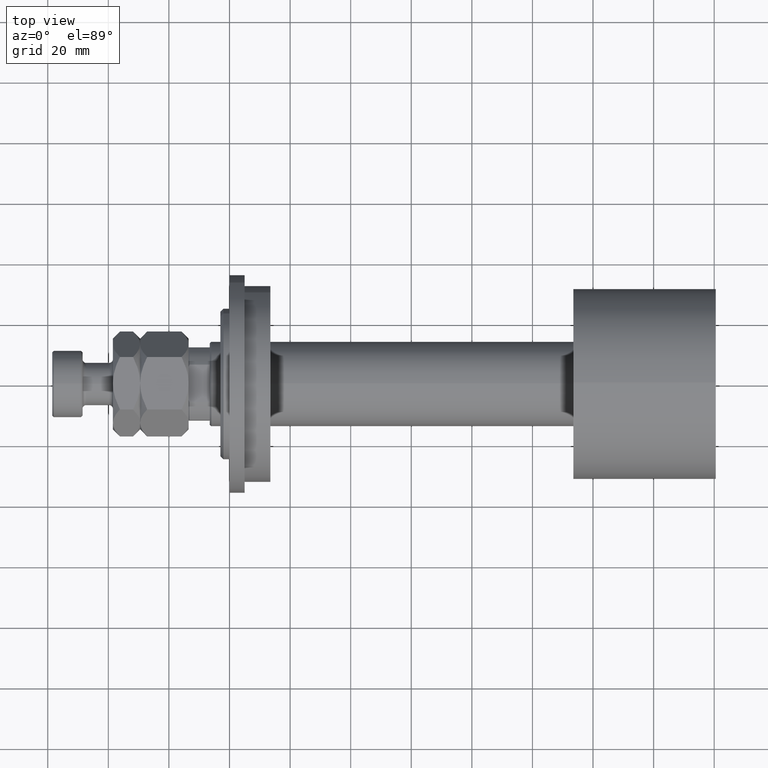
[diagram: clean part render]
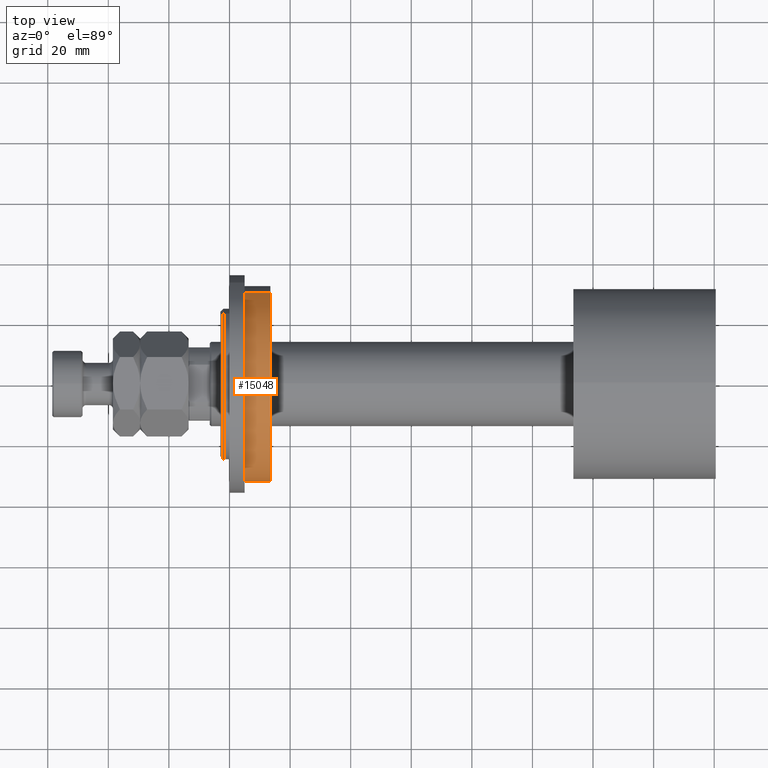
[diagram: same view with one face highlighted and labeled with its STEP entity id]
A machine part, top view. The second image highlights one B-rep face of the part: STEP entity #15048.
In plain terms, the highlighted cylindrical surface (partial cylindrical patch) has radius 32.5 mm, axis along (-1, 0, 0).
Its self-contained STEP definition (entity closure, byte-faithful):
#811 = DIRECTION ( 'NONE',  ( 1.000000000000000000, -0.000000000000000000, -0.000000000000000000 ) ) ;
#1454 = CYLINDRICAL_SURFACE ( 'NONE', #23743, 32.50000000000000000 ) ;
#2248 = ORIENTED_EDGE ( 'NONE', *, *, #26708, .F. ) ;
#5016 = VERTEX_POINT ( 'NONE', #38347 ) ;
#5364 = FACE_OUTER_BOUND ( 'NONE', #5820, .T. ) ;
#5820 = EDGE_LOOP ( 'NONE', ( #24503, #2248, #29533, #18187 ) ) ;
#8798 = CARTESIAN_POINT ( 'NONE',  ( -13.50000000000000178, 0.000000000000000000, 0.000000000000000000 ) ) ;
#9146 = DIRECTION ( 'NONE',  ( 1.000000000000000000, -0.000000000000000000, -0.000000000000000000 ) ) ;
#11418 = VERTEX_POINT ( 'NONE', #45026 ) ;
#12108 = DIRECTION ( 'NONE',  ( 0.000000000000000000, 0.000000000000000000, 1.000000000000000000 ) ) ;
#15048 = ADVANCED_FACE ( 'NONE', ( #5364 ), #1454, .T. ) ;
#16016 = DIRECTION ( 'NONE',  ( -1.000000000000000000, 0.000000000000000000, 0.000000000000000000 ) ) ;
#16487 = CARTESIAN_POINT ( 'NONE',  ( -13.50000000000000178, 0.000000000000000000, -32.50000000000000000 ) ) ;
#17016 = CARTESIAN_POINT ( 'NONE',  ( -5.000000000000000000, 3.980102097228898626E-15, 32.50000000000000000 ) ) ;
#18048 = CARTESIAN_POINT ( 'NONE',  ( -13.50000000000000178, 3.980102097228898626E-15, 32.50000000000000000 ) ) ;
#18187 = ORIENTED_EDGE ( 'NONE', *, *, #34700, .T. ) ;
#19686 = CARTESIAN_POINT ( 'NONE',  ( -13.50000000000000178, 0.000000000000000000, 0.000000000000000000 ) ) ;
#22409 = LINE ( 'NONE', #18048, #35951 ) ;
#23257 = VERTEX_POINT ( 'NONE', #37085 ) ;
#23743 = AXIS2_PLACEMENT_3D ( 'NONE', #8798, #36418, #40081 ) ;
#24503 = ORIENTED_EDGE ( 'NONE', *, *, #33503, .F. ) ;
#26708 = EDGE_CURVE ( 'NONE', #23257, #5016, #26987, .T. ) ;
#26710 = DIRECTION ( 'NONE',  ( 0.000000000000000000, 0.000000000000000000, 1.000000000000000000 ) ) ;
#26987 = CIRCLE ( 'NONE', #36568, 32.50000000000000000 ) ;
#28774 = VERTEX_POINT ( 'NONE', #17016 ) ;
#29307 = AXIS2_PLACEMENT_3D ( 'NONE', #33632, #29720, #26710 ) ;
#29407 = LINE ( 'NONE', #16487, #40487 ) ;
#29533 = ORIENTED_EDGE ( 'NONE', *, *, #43168, .T. ) ;
#29720 = DIRECTION ( 'NONE',  ( -1.000000000000000000, 0.000000000000000000, 0.000000000000000000 ) ) ;
#31507 = CIRCLE ( 'NONE', #29307, 32.50000000000000000 ) ;
#33503 = EDGE_CURVE ( 'NONE', #5016, #28774, #22409, .T. ) ;
#33632 = CARTESIAN_POINT ( 'NONE',  ( -5.000000000000000000, 0.000000000000000000, 0.000000000000000000 ) ) ;
#34700 = EDGE_CURVE ( 'NONE', #11418, #28774, #31507, .T. ) ;
#35951 = VECTOR ( 'NONE', #811, 1000.000000000000000 ) ;
#36418 = DIRECTION ( 'NONE',  ( 1.000000000000000000, -0.000000000000000000, -0.000000000000000000 ) ) ;
#36568 = AXIS2_PLACEMENT_3D ( 'NONE', #19686, #16016, #12108 ) ;
#37085 = CARTESIAN_POINT ( 'NONE',  ( -13.50000000000000178, 0.000000000000000000, -32.50000000000000000 ) ) ;
#38347 = CARTESIAN_POINT ( 'NONE',  ( -13.50000000000000178, 3.980102097228898626E-15, 32.50000000000000000 ) ) ;
#40081 = DIRECTION ( 'NONE',  ( 0.000000000000000000, 0.000000000000000000, -1.000000000000000000 ) ) ;
#40487 = VECTOR ( 'NONE', #9146, 1000.000000000000000 ) ;
#43168 = EDGE_CURVE ( 'NONE', #23257, #11418, #29407, .T. ) ;
#45026 = CARTESIAN_POINT ( 'NONE',  ( -5.000000000000000000, 0.000000000000000000, -32.50000000000000000 ) ) ;